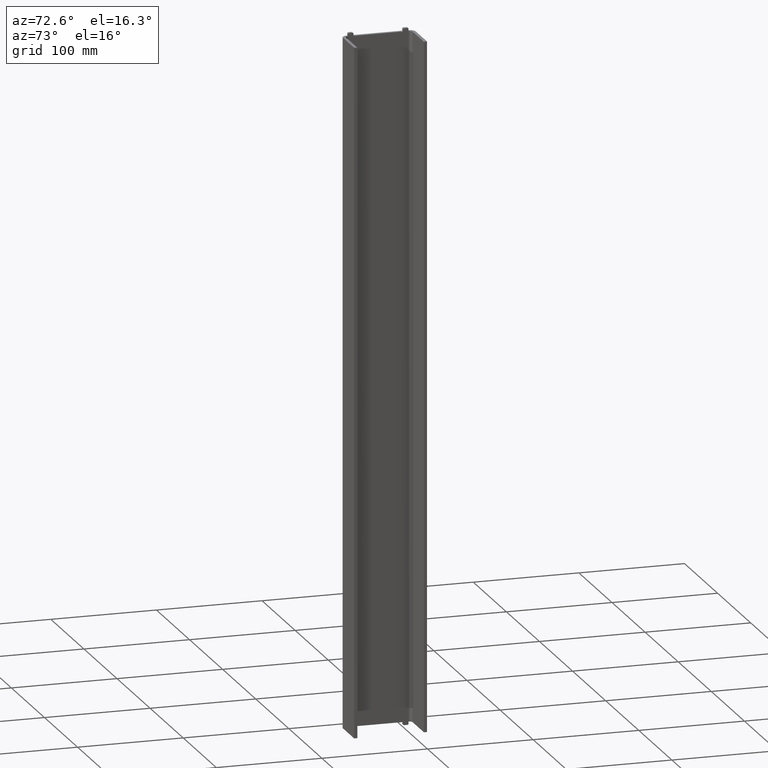
[diagram: clean part render]
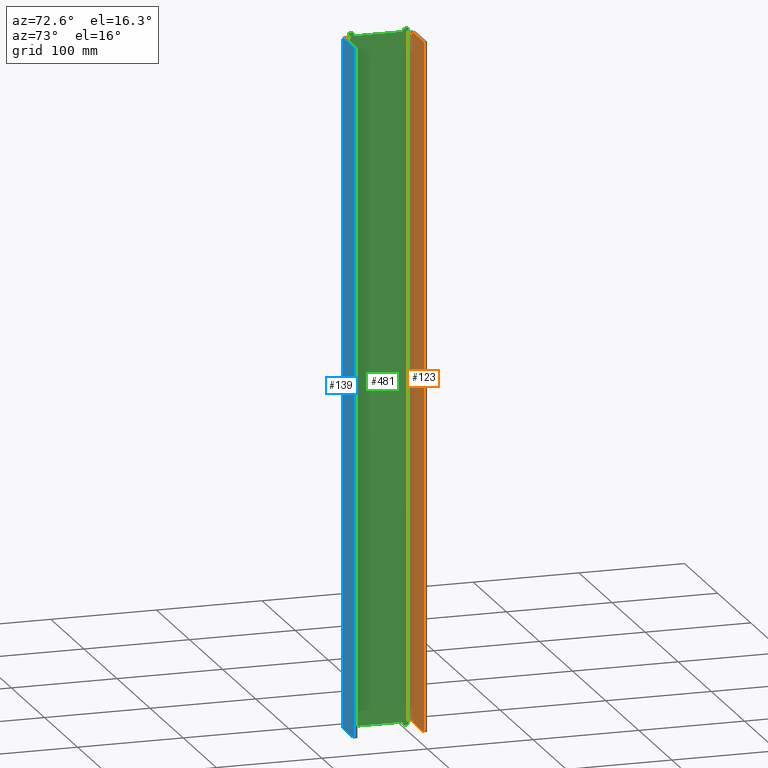
[diagram: same view with three faces highlighted in distinct colors, each labeled with its STEP entity id]
A machine part, auxiliary view with three faces highlighted in distinct colors.
Their STEP definitions:

[orange] entity #123 — the highlighted planar face has unit normal (0, -1, 0).
#64 = CARTESIAN_POINT ( 'NONE',  ( -309.9999999999996021, -1100.305262667903662, -624.9999999999997726 ) ) ;
#78 = DIRECTION ( 'NONE',  ( 0.000000000000000000, -0.000000000000000000, -1.000000000000000000 ) ) ;
#123 = ADVANCED_FACE ( 'NONE', ( #586 ), #887, .T. ) ;
#254 = VECTOR ( 'NONE', #78, 1000.000000000000000 ) ;
#262 = DIRECTION ( 'NONE',  ( -1.000000000000000000, -0.000000000000000000, -0.000000000000000000 ) ) ;
#269 = DIRECTION ( 'NONE',  ( 0.000000000000000000, -1.000000000000000000, 0.000000000000000000 ) ) ;
#294 = DIRECTION ( 'NONE',  ( 0.000000000000000000, -0.000000000000000000, -1.000000000000000000 ) ) ;
#329 = VERTEX_POINT ( 'NONE', #880 ) ;
#367 = AXIS2_PLACEMENT_3D ( 'NONE', #975, #269, #294 ) ;
#440 = EDGE_CURVE ( 'NONE', #991, #329, #1099, .T. ) ;
#452 = DIRECTION ( 'NONE',  ( -0.000000000000000000, 0.000000000000000000, 1.000000000000000000 ) ) ;
#517 = DIRECTION ( 'NONE',  ( -1.000000000000000000, -0.000000000000000000, -0.000000000000000000 ) ) ;
#518 = EDGE_LOOP ( 'NONE', ( #1242, #883, #554, #541 ) ) ;
#541 = ORIENTED_EDGE ( 'NONE', *, *, #606, .F. ) ;
#554 = ORIENTED_EDGE ( 'NONE', *, *, #440, .T. ) ;
#569 = CARTESIAN_POINT ( 'NONE',  ( -309.9999999999996021, -1100.305262667903662, 25.00000000000046541 ) ) ;
#586 = FACE_OUTER_BOUND ( 'NONE', #518, .T. ) ;
#602 = VECTOR ( 'NONE', #452, 1000.000000000000000 ) ;
#606 = EDGE_CURVE ( 'NONE', #908, #329, #841, .T. ) ;
#718 = CARTESIAN_POINT ( 'NONE',  ( 1090.972523324353915, -1100.305262667903662, 25.00000000000046541 ) ) ;
#725 = EDGE_CURVE ( 'NONE', #991, #1194, #785, .T. ) ;
#760 = LINE ( 'NONE', #1140, #863 ) ;
#785 = LINE ( 'NONE', #968, #254 ) ;
#841 = LINE ( 'NONE', #1241, #602 ) ;
#863 = VECTOR ( 'NONE', #262, 1000.000000000000000 ) ;
#880 = CARTESIAN_POINT ( 'NONE',  ( -343.9999999999996589, -1100.305262667903889, 25.00000000000046541 ) ) ;
#883 = ORIENTED_EDGE ( 'NONE', *, *, #725, .F. ) ;
#887 = PLANE ( 'NONE',  #367 ) ;
#908 = VERTEX_POINT ( 'NONE', #1267 ) ;
#968 = CARTESIAN_POINT ( 'NONE',  ( -309.9999999999996021, -1100.305262667903662, 104.7558775263622834 ) ) ;
#975 = CARTESIAN_POINT ( 'NONE',  ( 1090.972523324353915, -1100.305262667903662, 104.7558775263622834 ) ) ;
#991 = VERTEX_POINT ( 'NONE', #569 ) ;
#1003 = VECTOR ( 'NONE', #517, 1000.000000000000000 ) ;
#1099 = LINE ( 'NONE', #718, #1003 ) ;
#1140 = CARTESIAN_POINT ( 'NONE',  ( 1090.972523324353915, -1100.305262667903662, -624.9999999999997726 ) ) ;
#1154 = EDGE_CURVE ( 'NONE', #1194, #908, #760, .T. ) ;
#1194 = VERTEX_POINT ( 'NONE', #64 ) ;
#1241 = CARTESIAN_POINT ( 'NONE',  ( -343.9999999999996589, -1100.305262667903662, 104.7558775263622834 ) ) ;
#1242 = ORIENTED_EDGE ( 'NONE', *, *, #1154, .F. ) ;
#1267 = CARTESIAN_POINT ( 'NONE',  ( -343.9999999999996589, -1100.305262667903662, -624.9999999999997726 ) ) ;

[blue] entity #139 — the highlighted planar face has unit normal (0, -1, 0).
#41 = LINE ( 'NONE', #1165, #1266 ) ;
#66 = VECTOR ( 'NONE', #878, 1000.000000000000000 ) ;
#69 = PLANE ( 'NONE',  #705 ) ;
#139 = ADVANCED_FACE ( 'NONE', ( #1147 ), #69, .T. ) ;
#162 = LINE ( 'NONE', #245, #299 ) ;
#183 = LINE ( 'NONE', #485, #66 ) ;
#245 = CARTESIAN_POINT ( 'NONE',  ( -309.9999999999996021, -1166.305262667903889, 104.7558775263622834 ) ) ;
#258 = DIRECTION ( 'NONE',  ( 5.551115123125788224E-15, -1.000000000000000000, 0.000000000000000000 ) ) ;
#264 = EDGE_CURVE ( 'NONE', #926, #811, #1234, .T. ) ;
#273 = DIRECTION ( 'NONE',  ( 0.000000000000000000, 0.000000000000000000, -1.000000000000000000 ) ) ;
#299 = VECTOR ( 'NONE', #567, 1000.000000000000000 ) ;
#334 = ORIENTED_EDGE ( 'NONE', *, *, #264, .F. ) ;
#401 = ORIENTED_EDGE ( 'NONE', *, *, #1192, .F. ) ;
#409 = CARTESIAN_POINT ( 'NONE',  ( -343.9999999999996589, -1166.305262667904117, 25.00000000000045119 ) ) ;
#431 = CARTESIAN_POINT ( 'NONE',  ( -343.9999999999996589, -1166.305262667904117, -624.9999999999997726 ) ) ;
#435 = VERTEX_POINT ( 'NONE', #409 ) ;
#485 = CARTESIAN_POINT ( 'NONE',  ( 1090.972523324354370, -1166.305262667895931, 25.00000000000045119 ) ) ;
#543 = ORIENTED_EDGE ( 'NONE', *, *, #581, .T. ) ;
#567 = DIRECTION ( 'NONE',  ( 0.000000000000000000, -0.000000000000000000, -1.000000000000000000 ) ) ;
#581 = EDGE_CURVE ( 'NONE', #435, #811, #41, .T. ) ;
#686 = ORIENTED_EDGE ( 'NONE', *, *, #1030, .T. ) ;
#705 = AXIS2_PLACEMENT_3D ( 'NONE', #757, #258, #1171 ) ;
#744 = CARTESIAN_POINT ( 'NONE',  ( 1090.972523324354370, -1166.305262667895931, -624.9999999999997726 ) ) ;
#757 = CARTESIAN_POINT ( 'NONE',  ( 1090.972523324354370, -1166.305262667895931, 104.7558775263622834 ) ) ;
#811 = VERTEX_POINT ( 'NONE', #431 ) ;
#845 = VECTOR ( 'NONE', #1021, 1000.000000000000000 ) ;
#878 = DIRECTION ( 'NONE',  ( -1.000000000000000000, -5.551115123125788224E-15, -0.000000000000000000 ) ) ;
#926 = VERTEX_POINT ( 'NONE', #1024 ) ;
#1012 = EDGE_LOOP ( 'NONE', ( #686, #543, #334, #401 ) ) ;
#1021 = DIRECTION ( 'NONE',  ( -1.000000000000000000, -5.551115123125788224E-15, -0.000000000000000000 ) ) ;
#1024 = CARTESIAN_POINT ( 'NONE',  ( -309.9999999999996021, -1166.305262667903889, -624.9999999999997726 ) ) ;
#1030 = EDGE_CURVE ( 'NONE', #1291, #435, #183, .T. ) ;
#1066 = CARTESIAN_POINT ( 'NONE',  ( -309.9999999999996021, -1166.305262667903889, 25.00000000000045119 ) ) ;
#1147 = FACE_OUTER_BOUND ( 'NONE', #1012, .T. ) ;
#1165 = CARTESIAN_POINT ( 'NONE',  ( -343.9999999999996589, -1166.305262667904117, 104.7558775263622834 ) ) ;
#1171 = DIRECTION ( 'NONE',  ( 1.000000000000000000, 5.551115123125788224E-15, 0.000000000000000000 ) ) ;
#1192 = EDGE_CURVE ( 'NONE', #1291, #926, #162, .T. ) ;
#1234 = LINE ( 'NONE', #744, #845 ) ;
#1266 = VECTOR ( 'NONE', #273, 1000.000000000000000 ) ;
#1291 = VERTEX_POINT ( 'NONE', #1066 ) ;

[green] entity #481 — the highlighted planar face has unit normal (-1, 0, 0).
#11 = VERTEX_POINT ( 'NONE', #169 ) ;
#29 = EDGE_CURVE ( 'NONE', #1136, #1169, #1079, .T. ) ;
#30 = PLANE ( 'NONE',  #535 ) ;
#31 = VERTEX_POINT ( 'NONE', #876 ) ;
#34 = VERTEX_POINT ( 'NONE', #871 ) ;
#44 = VECTOR ( 'NONE', #1046, 1000.000000000000000 ) ;
#47 = EDGE_CURVE ( 'NONE', #34, #417, #800, .T. ) ;
#50 = VECTOR ( 'NONE', #1254, 1000.000000000000000 ) ;
#60 = DIRECTION ( 'NONE',  ( 0.000000000000000000, 0.000000000000000000, 1.000000000000000000 ) ) ;
#61 = CARTESIAN_POINT ( 'NONE',  ( -346.9999999999996589, -1155.305262667904117, -626.9999999999997726 ) ) ;
#67 = CARTESIAN_POINT ( 'NONE',  ( -346.9999999999996589, -1093.805262667903889, -624.9999999999997726 ) ) ;
#80 = LINE ( 'NONE', #484, #678 ) ;
#83 = LINE ( 'NONE', #405, #109 ) ;
#85 = CARTESIAN_POINT ( 'NONE',  ( -346.9999999999996589, -1159.305262667904117, 28.00000000000046185 ) ) ;
#91 = DIRECTION ( 'NONE',  ( 0.000000000000000000, -0.000000000000000000, 1.000000000000000000 ) ) ;
#95 = ORIENTED_EDGE ( 'NONE', *, *, #778, .F. ) ;
#105 = CARTESIAN_POINT ( 'NONE',  ( -346.9999999999996589, -1108.305262667903889, -624.9999999999997726 ) ) ;
#106 = ORIENTED_EDGE ( 'NONE', *, *, #1271, .T. ) ;
#109 = VECTOR ( 'NONE', #979, 1000.000000000000000 ) ;
#112 = DIRECTION ( 'NONE',  ( 0.000000000000000000, 0.000000000000000000, -1.000000000000000000 ) ) ;
#113 = ORIENTED_EDGE ( 'NONE', *, *, #255, .F. ) ;
#130 = VERTEX_POINT ( 'NONE', #85 ) ;
#138 = VECTOR ( 'NONE', #443, 1000.000000000000000 ) ;
#159 = CARTESIAN_POINT ( 'NONE',  ( -346.9999999999995453, -1156.305262667904117, -626.9999999999997726 ) ) ;
#165 = CARTESIAN_POINT ( 'NONE',  ( -346.9999999999996589, -1104.305262667903889, 28.00000000000046896 ) ) ;
#167 = DIRECTION ( 'NONE',  ( 0.000000000000000000, 0.000000000000000000, 1.000000000000000000 ) ) ;
#169 = CARTESIAN_POINT ( 'NONE',  ( -346.9999999999996589, -1156.305262667904117, 28.00000000000046185 ) ) ;
#171 = ORIENTED_EDGE ( 'NONE', *, *, #996, .T. ) ;
#172 = VERTEX_POINT ( 'NONE', #403 ) ;
#187 = CARTESIAN_POINT ( 'NONE',  ( -346.9999999999996589, -1103.305262667904117, 27.00000000000046896 ) ) ;
#195 = VERTEX_POINT ( 'NONE', #228 ) ;
#210 = CARTESIAN_POINT ( 'NONE',  ( -346.9999999999996589, -1160.305262667904117, -630.9999999999995453 ) ) ;
#211 = VERTEX_POINT ( 'NONE', #340 ) ;
#212 = DIRECTION ( 'NONE',  ( 0.000000000000000000, 0.000000000000000000, 1.000000000000000000 ) ) ;
#214 = DIRECTION ( 'NONE',  ( 0.000000000000000000, -0.000000000000000000, 1.000000000000000000 ) ) ;
#215 = VERTEX_POINT ( 'NONE', #234 ) ;
#216 = CARTESIAN_POINT ( 'NONE',  ( -346.9999999999995453, -1107.305262667904117, -626.9999999999997726 ) ) ;
#218 = ORIENTED_EDGE ( 'NONE', *, *, #373, .T. ) ;
#219 = EDGE_CURVE ( 'NONE', #957, #172, #836, .T. ) ;
#221 = DIRECTION ( 'NONE',  ( 1.000000000000000000, 0.000000000000000000, 0.000000000000000000 ) ) ;
#222 = CARTESIAN_POINT ( 'NONE',  ( -346.9999999999996589, -1160.305262667904117, 104.7558775263622834 ) ) ;
#228 = CARTESIAN_POINT ( 'NONE',  ( -346.9999999999996589, -1103.305262667904117, 25.00000000000045119 ) ) ;
#230 = DIRECTION ( 'NONE',  ( 1.000000000000000000, 0.000000000000000000, 0.000000000000000000 ) ) ;
#234 = CARTESIAN_POINT ( 'NONE',  ( -346.9999999999996589, -1160.305262667904117, 27.00000000000046185 ) ) ;
#255 = EDGE_CURVE ( 'NONE', #639, #1169, #524, .T. ) ;
#256 = CIRCLE ( 'NONE', #533, 1.000000000000000888 ) ;
#257 = DIRECTION ( 'NONE',  ( 0.000000000000000000, 0.000000000000000000, -1.000000000000000000 ) ) ;
#260 = VECTOR ( 'NONE', #1065, 1000.000000000000000 ) ;
#285 = AXIS2_PLACEMENT_3D ( 'NONE', #1103, #221, #112 ) ;
#286 = CARTESIAN_POINT ( 'NONE',  ( -346.9999999999996589, -1159.305262667904117, -627.9999999999997726 ) ) ;
#291 = EDGE_CURVE ( 'NONE', #215, #31, #786, .T. ) ;
#293 = LINE ( 'NONE', #585, #1013 ) ;
#307 = DIRECTION ( 'NONE',  ( 0.000000000000000000, 0.000000000000000000, 1.000000000000000000 ) ) ;
#313 = CARTESIAN_POINT ( 'NONE',  ( -346.9999999999996589, -1103.305262667903889, 104.7558775263622834 ) ) ;
#336 = ORIENTED_EDGE ( 'NONE', *, *, #29, .T. ) ;
#337 = CIRCLE ( 'NONE', #1173, 1.000000000000000888 ) ;
#339 = ORIENTED_EDGE ( 'NONE', *, *, #832, .T. ) ;
#340 = CARTESIAN_POINT ( 'NONE',  ( -346.9999999999996589, -1155.305262667904117, 27.00000000000046185 ) ) ;
#343 = EDGE_CURVE ( 'NONE', #691, #966, #1283, .T. ) ;
#345 = CIRCLE ( 'NONE', #1107, 1.000000000000000888 ) ;
#356 = CARTESIAN_POINT ( 'NONE',  ( -346.9999999999996589, -1103.305262667904117, -626.9999999999997726 ) ) ;
#363 = VECTOR ( 'NONE', #1256, 1000.000000000000000 ) ;
#369 = CARTESIAN_POINT ( 'NONE',  ( -346.9999999999996589, -1108.305262667903889, -630.9999999999995453 ) ) ;
#373 = EDGE_CURVE ( 'NONE', #34, #1139, #345, .T. ) ;
#384 = ORIENTED_EDGE ( 'NONE', *, *, #817, .F. ) ;
#403 = CARTESIAN_POINT ( 'NONE',  ( -346.9999999999996589, -1103.305262667903889, -624.9999999999997726 ) ) ;
#405 = CARTESIAN_POINT ( 'NONE',  ( -346.9999999999996589, -1155.305262667904117, -627.9999999999997726 ) ) ;
#411 = AXIS2_PLACEMENT_3D ( 'NONE', #779, #1138, #549 ) ;
#412 = EDGE_CURVE ( 'NONE', #1251, #917, #683, .T. ) ;
#414 = LINE ( 'NONE', #313, #616 ) ;
#417 = VERTEX_POINT ( 'NONE', #105 ) ;
#427 = EDGE_CURVE ( 'NONE', #528, #621, #508, .T. ) ;
#432 = ORIENTED_EDGE ( 'NONE', *, *, #1250, .F. ) ;
#439 = ORIENTED_EDGE ( 'NONE', *, *, #219, .T. ) ;
#441 = CARTESIAN_POINT ( 'NONE',  ( -346.9999999999996589, -1159.305262667904117, 27.00000000000046185 ) ) ;
#443 = DIRECTION ( 'NONE',  ( -0.000000000000000000, 1.369518533665899079E-16, -1.000000000000000000 ) ) ;
#444 = CARTESIAN_POINT ( 'NONE',  ( -346.9999999999996589, -1093.805262667903889, 25.00000000000045119 ) ) ;
#471 = DIRECTION ( 'NONE',  ( 0.000000000000000000, 1.000000000000000000, -0.000000000000000000 ) ) ;
#475 = CARTESIAN_POINT ( 'NONE',  ( -346.9999999999996589, -1160.305262667904117, 31.00000000000047251 ) ) ;
#481 = ADVANCED_FACE ( 'NONE', ( #716 ), #30, .F. ) ;
#483 = CARTESIAN_POINT ( 'NONE',  ( -346.9999999999996589, -1108.305262667903889, 31.00000000000048672 ) ) ;
#484 = CARTESIAN_POINT ( 'NONE',  ( -346.9999999999996589, -1155.305262667904117, 31.00000000000047251 ) ) ;
#496 = ORIENTED_EDGE ( 'NONE', *, *, #685, .F. ) ;
#504 = CARTESIAN_POINT ( 'NONE',  ( -346.9999999999996589, -1155.305262667904117, -624.9999999999997726 ) ) ;
#508 = LINE ( 'NONE', #1210, #869 ) ;
#511 = DIRECTION ( 'NONE',  ( 0.000000000000000000, 0.000000000000000000, 1.000000000000000000 ) ) ;
#524 = LINE ( 'NONE', #444, #1243 ) ;
#528 = VERTEX_POINT ( 'NONE', #61 ) ;
#530 = AXIS2_PLACEMENT_3D ( 'NONE', #597, #1064, #307 ) ;
#533 = AXIS2_PLACEMENT_3D ( 'NONE', #1073, #1277, #212 ) ;
#535 = AXIS2_PLACEMENT_3D ( 'NONE', #1109, #576, #167 ) ;
#546 = EDGE_LOOP ( 'NONE', ( #95, #1097, #985, #496, #719, #782, #171, #750, #218, #643, #106, #439, #384, #1001, #1117, #1187, #1124, #336, #113, #432, #339, #1016, #899, #614 ) ) ;
#548 = CARTESIAN_POINT ( 'NONE',  ( -346.9999999999996589, -1160.305262667904117, -624.9999999999997726 ) ) ;
#549 = DIRECTION ( 'NONE',  ( 0.000000000000000000, 0.000000000000000000, -1.000000000000000000 ) ) ;
#552 = CARTESIAN_POINT ( 'NONE',  ( -346.9999999999996589, -1108.305262667903889, 27.00000000000046896 ) ) ;
#558 = EDGE_CURVE ( 'NONE', #857, #1136, #1153, .T. ) ;
#576 = DIRECTION ( 'NONE',  ( -1.000000000000000000, 0.000000000000000000, 0.000000000000000000 ) ) ;
#583 = EDGE_CURVE ( 'NONE', #1251, #195, #672, .T. ) ;
#585 = CARTESIAN_POINT ( 'NONE',  ( -346.9999999999996589, -1155.305262667904117, 28.00000000000046185 ) ) ;
#597 = CARTESIAN_POINT ( 'NONE',  ( -346.9999999999995453, -1159.305262667904117, -626.9999999999997726 ) ) ;
#601 = VECTOR ( 'NONE', #821, 1000.000000000000000 ) ;
#614 = ORIENTED_EDGE ( 'NONE', *, *, #291, .T. ) ;
#616 = VECTOR ( 'NONE', #829, 1000.000000000000000 ) ;
#621 = VERTEX_POINT ( 'NONE', #504 ) ;
#629 = CARTESIAN_POINT ( 'NONE',  ( -346.9999999999996589, -1156.305262667904117, 27.00000000000046185 ) ) ;
#639 = VERTEX_POINT ( 'NONE', #1296 ) ;
#643 = ORIENTED_EDGE ( 'NONE', *, *, #1110, .F. ) ;
#647 = DIRECTION ( 'NONE',  ( 0.000000000000000000, 1.000000000000000000, -0.000000000000000000 ) ) ;
#672 = LINE ( 'NONE', #935, #138 ) ;
#678 = VECTOR ( 'NONE', #751, 1000.000000000000000 ) ;
#683 = CIRCLE ( 'NONE', #285, 1.000000000000000888 ) ;
#685 = EDGE_CURVE ( 'NONE', #1112, #1038, #83, .T. ) ;
#691 = VERTEX_POINT ( 'NONE', #1288 ) ;
#701 = EDGE_CURVE ( 'NONE', #691, #1038, #1298, .T. ) ;
#716 = FACE_OUTER_BOUND ( 'NONE', #546, .T. ) ;
#719 = ORIENTED_EDGE ( 'NONE', *, *, #978, .T. ) ;
#730 = EDGE_CURVE ( 'NONE', #11, #130, #293, .T. ) ;
#740 = VECTOR ( 'NONE', #911, 1000.000000000000000 ) ;
#746 = CARTESIAN_POINT ( 'NONE',  ( -346.9999999999996589, -1103.305262667904117, -630.9999999999995453 ) ) ;
#750 = ORIENTED_EDGE ( 'NONE', *, *, #47, .F. ) ;
#751 = DIRECTION ( 'NONE',  ( -0.000000000000000000, 1.369518533665899079E-16, -1.000000000000000000 ) ) ;
#764 = CARTESIAN_POINT ( 'NONE',  ( -346.9999999999996589, -1104.305262667903889, -627.9999999999997726 ) ) ;
#771 = LINE ( 'NONE', #1155, #44 ) ;
#778 = EDGE_CURVE ( 'NONE', #966, #31, #1104, .T. ) ;
#779 = CARTESIAN_POINT ( 'NONE',  ( -346.9999999999996589, -1107.305262667904117, 27.00000000000046896 ) ) ;
#782 = ORIENTED_EDGE ( 'NONE', *, *, #427, .T. ) ;
#786 = LINE ( 'NONE', #475, #50 ) ;
#790 = VECTOR ( 'NONE', #471, 1000.000000000000000 ) ;
#799 = DIRECTION ( 'NONE',  ( 0.000000000000000000, -1.000000000000000000, -1.369518533665899079E-16 ) ) ;
#800 = LINE ( 'NONE', #369, #260 ) ;
#817 = EDGE_CURVE ( 'NONE', #195, #172, #414, .T. ) ;
#821 = DIRECTION ( 'NONE',  ( 0.000000000000000000, -0.000000000000000000, 1.000000000000000000 ) ) ;
#822 = CARTESIAN_POINT ( 'NONE',  ( -346.9999999999996589, -1107.305262667904117, 28.00000000000046896 ) ) ;
#825 = DIRECTION ( 'NONE',  ( 1.000000000000000000, -0.000000000000000000, -0.000000000000000000 ) ) ;
#829 = DIRECTION ( 'NONE',  ( -0.000000000000000000, -0.000000000000000000, -1.000000000000000000 ) ) ;
#832 = EDGE_CURVE ( 'NONE', #211, #11, #898, .T. ) ;
#836 = LINE ( 'NONE', #746, #601 ) ;
#851 = CARTESIAN_POINT ( 'NONE',  ( -346.9999999999996589, -1107.305262667904117, -627.9999999999997726 ) ) ;
#857 = VERTEX_POINT ( 'NONE', #822 ) ;
#869 = VECTOR ( 'NONE', #214, 1000.000000000000000 ) ;
#871 = CARTESIAN_POINT ( 'NONE',  ( -346.9999999999996589, -1108.305262667903889, -626.9999999999997726 ) ) ;
#872 = CARTESIAN_POINT ( 'NONE',  ( -346.9999999999996589, -1156.305262667904117, -627.9999999999997726 ) ) ;
#876 = CARTESIAN_POINT ( 'NONE',  ( -346.9999999999996589, -1160.305262667904117, 25.00000000000045119 ) ) ;
#898 = CIRCLE ( 'NONE', #1080, 1.000000000000000888 ) ;
#899 = ORIENTED_EDGE ( 'NONE', *, *, #924, .T. ) ;
#911 = DIRECTION ( 'NONE',  ( 0.000000000000000000, 0.000000000000000000, 1.000000000000000000 ) ) ;
#917 = VERTEX_POINT ( 'NONE', #165 ) ;
#922 = DIRECTION ( 'NONE',  ( 0.000000000000000000, 0.000000000000000000, -1.000000000000000000 ) ) ;
#924 = EDGE_CURVE ( 'NONE', #130, #215, #337, .T. ) ;
#927 = VECTOR ( 'NONE', #91, 1000.000000000000000 ) ;
#933 = VERTEX_POINT ( 'NONE', #764 ) ;
#935 = CARTESIAN_POINT ( 'NONE',  ( -346.9999999999996589, -1103.305262667904117, 31.00000000000048672 ) ) ;
#950 = DIRECTION ( 'NONE',  ( 1.000000000000000000, -0.000000000000000000, -0.000000000000000000 ) ) ;
#955 = CARTESIAN_POINT ( 'NONE',  ( -346.9999999999996589, -1108.305262667903889, 25.00000000000045119 ) ) ;
#957 = VERTEX_POINT ( 'NONE', #356 ) ;
#958 = LINE ( 'NONE', #67, #790 ) ;
#966 = VERTEX_POINT ( 'NONE', #548 ) ;
#978 = EDGE_CURVE ( 'NONE', #1112, #528, #1195, .T. ) ;
#979 = DIRECTION ( 'NONE',  ( 0.000000000000000000, -1.000000000000000000, 0.000000000000000000 ) ) ;
#985 = ORIENTED_EDGE ( 'NONE', *, *, #701, .T. ) ;
#990 = EDGE_CURVE ( 'NONE', #917, #857, #771, .T. ) ;
#996 = EDGE_CURVE ( 'NONE', #621, #417, #958, .T. ) ;
#1001 = ORIENTED_EDGE ( 'NONE', *, *, #583, .F. ) ;
#1013 = VECTOR ( 'NONE', #799, 1000.000000000000000 ) ;
#1016 = ORIENTED_EDGE ( 'NONE', *, *, #730, .T. ) ;
#1028 = CARTESIAN_POINT ( 'NONE',  ( -346.9999999999996589, -1103.305262667904117, -627.9999999999997726 ) ) ;
#1038 = VERTEX_POINT ( 'NONE', #286 ) ;
#1039 = VECTOR ( 'NONE', #1176, 1000.000000000000000 ) ;
#1046 = DIRECTION ( 'NONE',  ( 0.000000000000000000, -1.000000000000000000, -1.369518533665899079E-16 ) ) ;
#1064 = DIRECTION ( 'NONE',  ( 1.000000000000000000, -0.000000000000000000, -0.000000000000000000 ) ) ;
#1065 = DIRECTION ( 'NONE',  ( 0.000000000000000000, -0.000000000000000000, 1.000000000000000000 ) ) ;
#1073 = CARTESIAN_POINT ( 'NONE',  ( -346.9999999999995453, -1104.305262667903889, -626.9999999999997726 ) ) ;
#1079 = LINE ( 'NONE', #483, #1039 ) ;
#1080 = AXIS2_PLACEMENT_3D ( 'NONE', #629, #230, #922 ) ;
#1097 = ORIENTED_EDGE ( 'NONE', *, *, #343, .F. ) ;
#1103 = CARTESIAN_POINT ( 'NONE',  ( -346.9999999999996589, -1104.305262667903889, 27.00000000000046896 ) ) ;
#1104 = LINE ( 'NONE', #222, #740 ) ;
#1107 = AXIS2_PLACEMENT_3D ( 'NONE', #216, #825, #511 ) ;
#1109 = CARTESIAN_POINT ( 'NONE',  ( -346.9999999999996589, -1093.805262667903889, 104.7558775263622834 ) ) ;
#1110 = EDGE_CURVE ( 'NONE', #933, #1139, #1168, .T. ) ;
#1112 = VERTEX_POINT ( 'NONE', #872 ) ;
#1117 = ORIENTED_EDGE ( 'NONE', *, *, #412, .T. ) ;
#1124 = ORIENTED_EDGE ( 'NONE', *, *, #558, .T. ) ;
#1136 = VERTEX_POINT ( 'NONE', #552 ) ;
#1138 = DIRECTION ( 'NONE',  ( 1.000000000000000000, 0.000000000000000000, 0.000000000000000000 ) ) ;
#1139 = VERTEX_POINT ( 'NONE', #851 ) ;
#1153 = CIRCLE ( 'NONE', #411, 1.000000000000000888 ) ;
#1155 = CARTESIAN_POINT ( 'NONE',  ( -346.9999999999996589, -1103.305262667904117, 28.00000000000046896 ) ) ;
#1168 = LINE ( 'NONE', #1028, #363 ) ;
#1169 = VERTEX_POINT ( 'NONE', #955 ) ;
#1173 = AXIS2_PLACEMENT_3D ( 'NONE', #441, #1260, #257 ) ;
#1176 = DIRECTION ( 'NONE',  ( -0.000000000000000000, 1.369518533665899079E-16, -1.000000000000000000 ) ) ;
#1187 = ORIENTED_EDGE ( 'NONE', *, *, #990, .T. ) ;
#1195 = CIRCLE ( 'NONE', #1217, 1.000000000000000888 ) ;
#1210 = CARTESIAN_POINT ( 'NONE',  ( -346.9999999999996589, -1155.305262667904117, -630.9999999999995453 ) ) ;
#1217 = AXIS2_PLACEMENT_3D ( 'NONE', #159, #950, #60 ) ;
#1243 = VECTOR ( 'NONE', #647, 1000.000000000000000 ) ;
#1250 = EDGE_CURVE ( 'NONE', #211, #639, #80, .T. ) ;
#1251 = VERTEX_POINT ( 'NONE', #187 ) ;
#1254 = DIRECTION ( 'NONE',  ( -0.000000000000000000, 1.369518533665899079E-16, -1.000000000000000000 ) ) ;
#1256 = DIRECTION ( 'NONE',  ( 0.000000000000000000, -1.000000000000000000, 0.000000000000000000 ) ) ;
#1260 = DIRECTION ( 'NONE',  ( 1.000000000000000000, 0.000000000000000000, 0.000000000000000000 ) ) ;
#1271 = EDGE_CURVE ( 'NONE', #933, #957, #256, .T. ) ;
#1277 = DIRECTION ( 'NONE',  ( 1.000000000000000000, -0.000000000000000000, -0.000000000000000000 ) ) ;
#1283 = LINE ( 'NONE', #210, #927 ) ;
#1288 = CARTESIAN_POINT ( 'NONE',  ( -346.9999999999996589, -1160.305262667904117, -626.9999999999997726 ) ) ;
#1296 = CARTESIAN_POINT ( 'NONE',  ( -346.9999999999996589, -1155.305262667904117, 25.00000000000045119 ) ) ;
#1298 = CIRCLE ( 'NONE', #530, 1.000000000000000888 ) ;